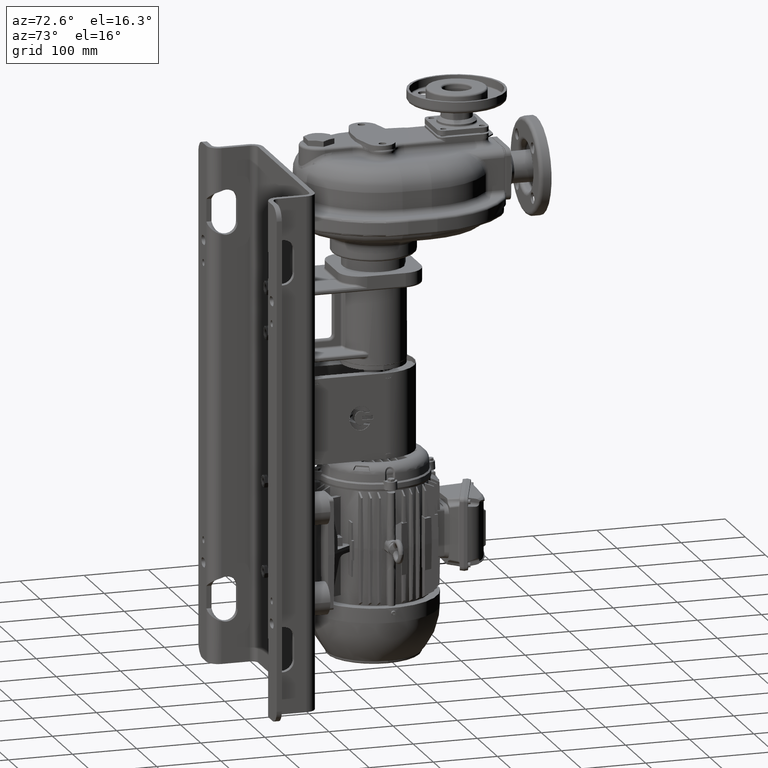
[diagram: clean part render]
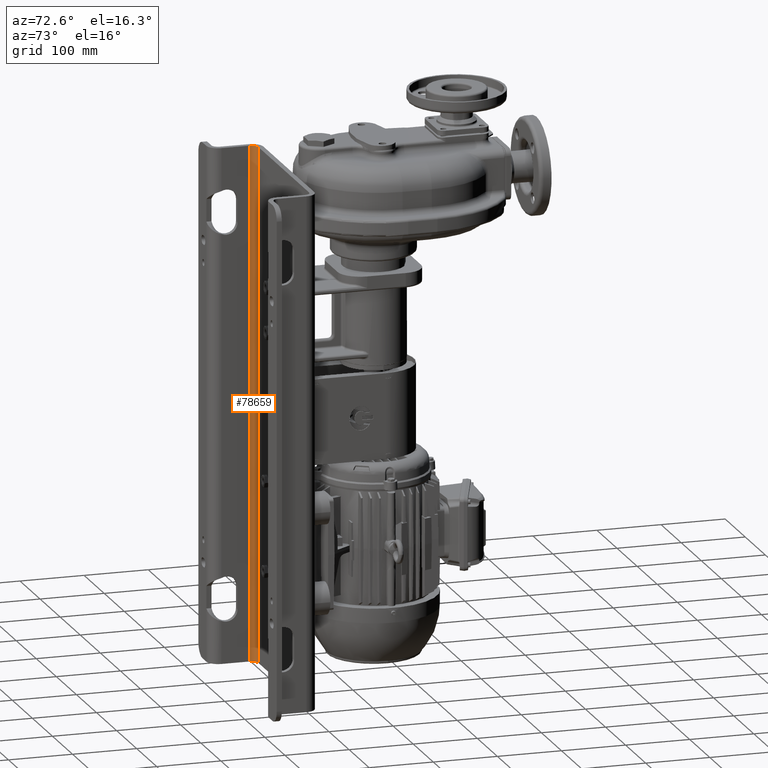
[diagram: same view with one face highlighted and labeled with its STEP entity id]
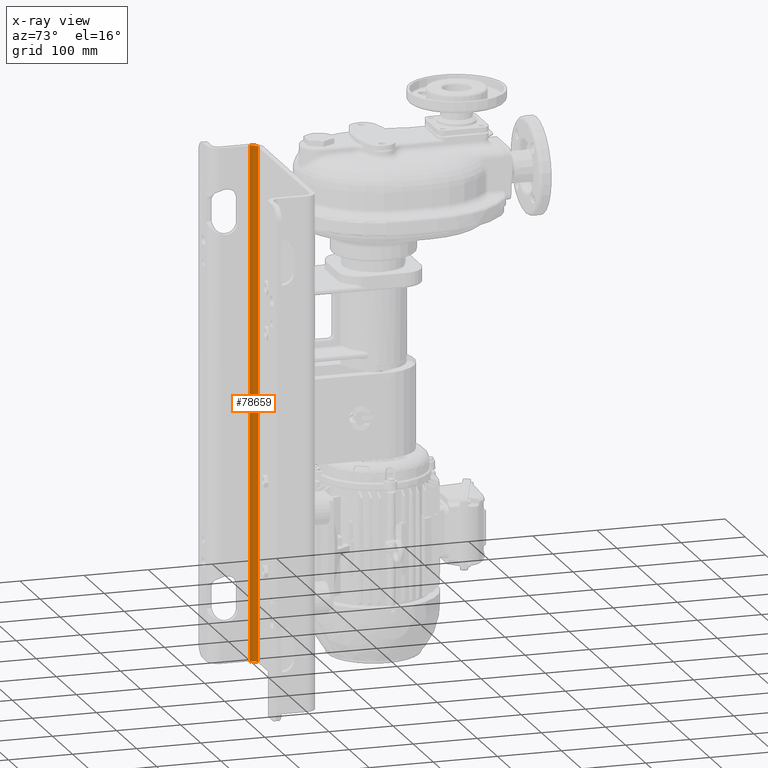
[diagram: x-ray of the same camera — body ghosted, the highlighted face saturated]
A machine part, auxiliary view. The second image highlights one B-rep face of the part: STEP entity #78659.
The next image is the same camera in x-ray: the body ghosted, the highlighted face saturated — about 0% of this face is hidden behind the body in this view.
In plain terms, the highlighted cylindrical surface (edge-blend (fillet) strip) has radius 10 mm, axis along (0, 0, -1).
Its self-contained STEP definition (entity closure, byte-faithful):
#12859=CARTESIAN_POINT('',(-1.27E2,-1.8E1,-6.E2));
#12860=DIRECTION('',(0.E0,0.E0,-1.E0));
#12861=DIRECTION('',(-1.E0,0.E0,0.E0));
#12862=AXIS2_PLACEMENT_3D('',#12859,#12860,#12861);
#12877=CARTESIAN_POINT('',(-1.27E2,-1.8E1,2.E2));
#12878=DIRECTION('',(0.E0,0.E0,-1.E0));
#12879=DIRECTION('',(-1.E0,0.E0,0.E0));
#12880=AXIS2_PLACEMENT_3D('',#12877,#12878,#12879);
#12882=DIRECTION('',(0.E0,0.E0,-1.E0));
#12883=VECTOR('',#12882,8.E2);
#12884=CARTESIAN_POINT('',(-1.37E2,-1.8E1,2.E2));
#12885=LINE('',#12884,#12883);
#12886=DIRECTION('',(0.E0,0.E0,-1.E0));
#12887=VECTOR('',#12886,8.E2);
#12888=CARTESIAN_POINT('',(-1.27E2,-8.E0,2.E2));
#12889=LINE('',#12888,#12887);
#63633=CARTESIAN_POINT('',(-1.37E2,-1.8E1,2.E2));
#63634=VERTEX_POINT('',#63633);
#63635=CARTESIAN_POINT('',(-1.27E2,-8.E0,2.E2));
#63636=VERTEX_POINT('',#63635);
#63649=CARTESIAN_POINT('',(-1.37E2,-1.8E1,-6.E2));
#63650=VERTEX_POINT('',#63649);
#63651=CARTESIAN_POINT('',(-1.27E2,-8.E0,-6.E2));
#63652=VERTEX_POINT('',#63651);
#78646=CARTESIAN_POINT('',(-1.27E2,-1.8E1,2.E2));
#78647=DIRECTION('',(0.E0,0.E0,-1.E0));
#78648=DIRECTION('',(-1.E0,0.E0,0.E0));
#78649=AXIS2_PLACEMENT_3D('',#78646,#78647,#78648);
#78650=CYLINDRICAL_SURFACE('',#78649,1.E1);
#78651=ORIENTED_EDGE('',*,*,#78639,.T.);
#78653=ORIENTED_EDGE('',*,*,#78652,.T.);
#78654=ORIENTED_EDGE('',*,*,#78612,.F.);
#78656=ORIENTED_EDGE('',*,*,#78655,.F.);
#78657=EDGE_LOOP('',(#78651,#78653,#78654,#78656));
#78658=FACE_OUTER_BOUND('',#78657,.F.);
#78659=ADVANCED_FACE('',(#78658),#78650,.F.);
#12863=CIRCLE('',#12862,1.E1);
#12881=CIRCLE('',#12880,1.E1);
#78612=EDGE_CURVE('',#63650,#63652,#12863,.T.);
#78639=EDGE_CURVE('',#63634,#63636,#12881,.T.);
#78652=EDGE_CURVE('',#63636,#63652,#12889,.T.);
#78655=EDGE_CURVE('',#63634,#63650,#12885,.T.);